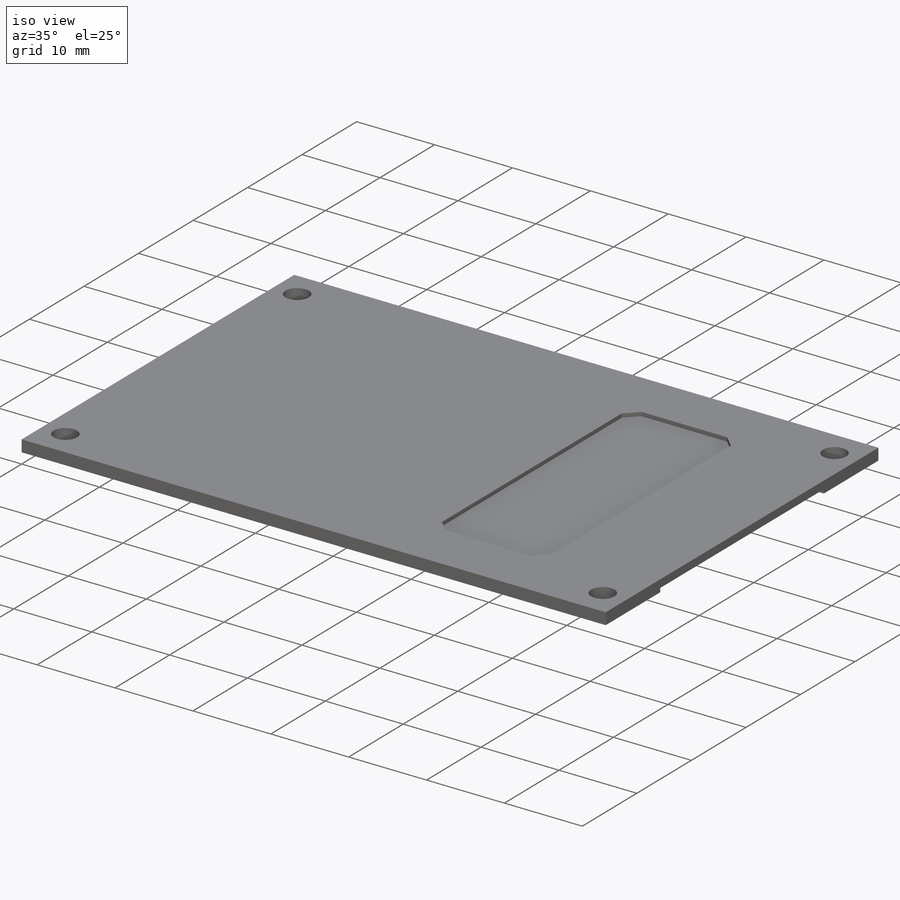
[diagram: iso view]
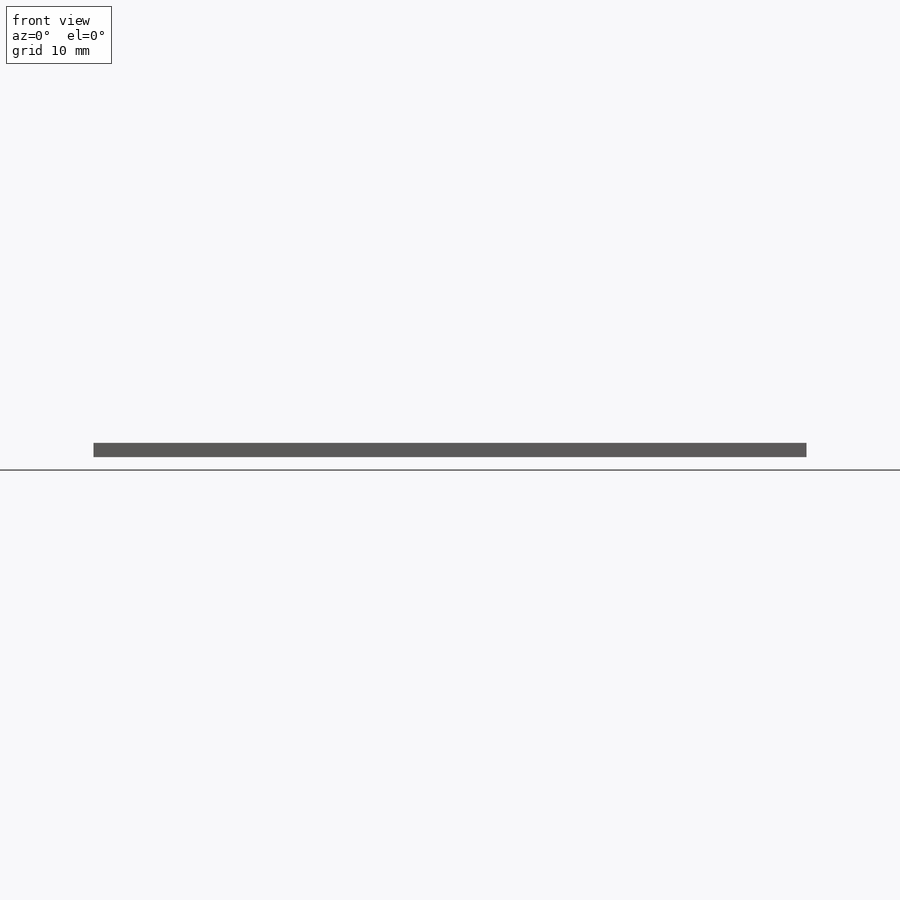
[diagram: front view]
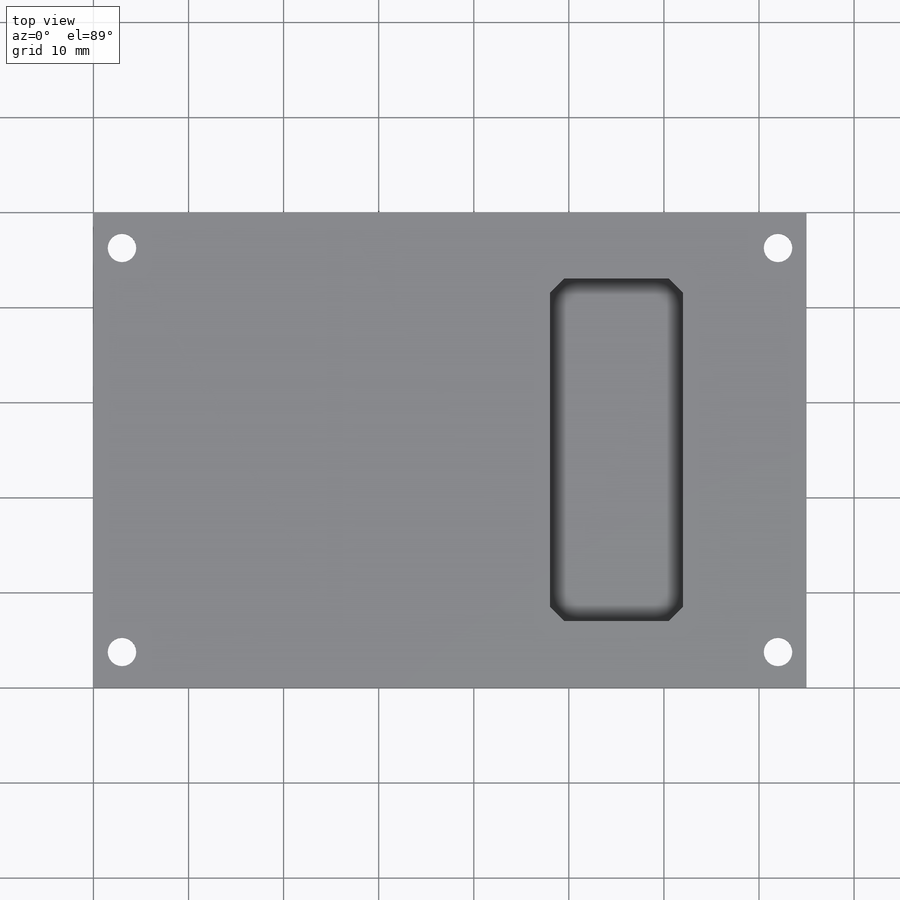
[diagram: top view]
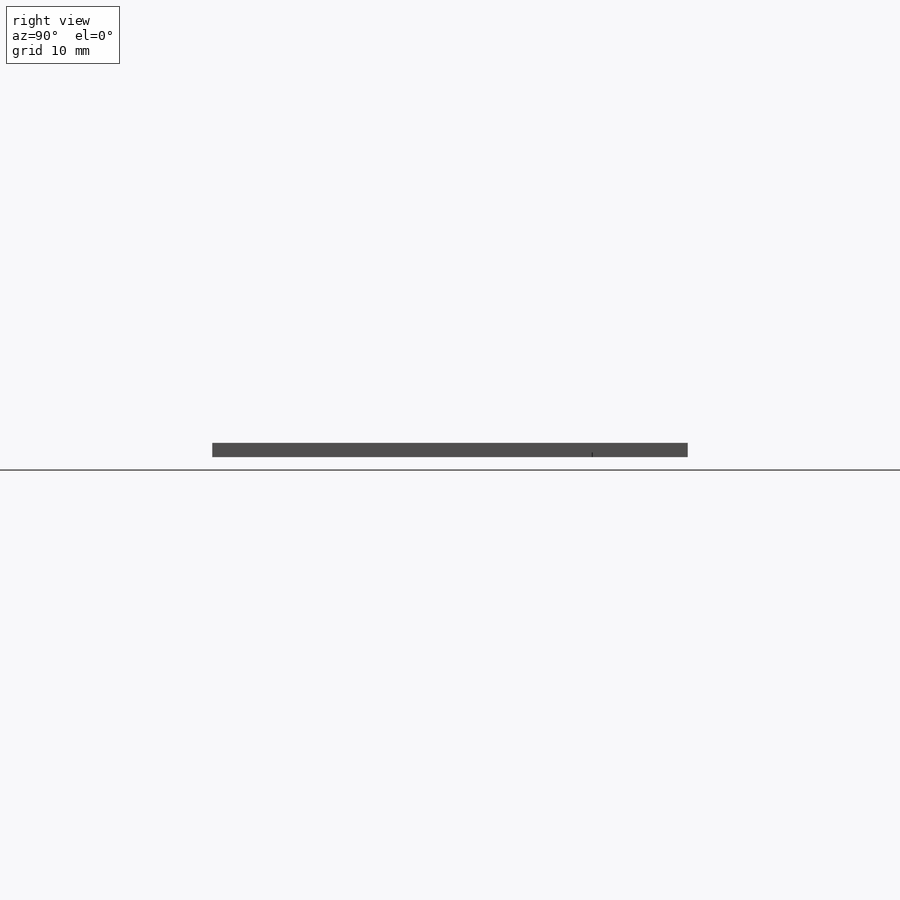
[diagram: right view]
SOLIDWORKS PART (.sldprt)
format: sldprt  version: not decoded by parser v0  size: 393,216 bytes
history: native  units: mm
features: sketch x4, plane x3, cut_extrude x3, material x1, extrude x1, chamfer x1 (+9 scaffold rows collapsed)
feature tree (22):
  scaffold x9  (default folders/planes/origin — collapsed)
  material  "Material <sin especificar>"
  plane  "Alzado"
  plane  "Planta"
  plane  "Vista lateral"
  sketch  "Croquis1"  dims[D5=3.0mm D1=75.0mm D2=50.0mm D3=69.0mm D4=42.5mm]
  extrude  "Saliente-Extruir1"  Depth=1.5mm
  sketch  "Croquis2"  dims[D5=6.2mm D6=10.0mm D1=5.5mm D2=12.0mm D3=3.5mm D4=37.0mm]
  cut_extrude  "Cortar-Extruir1"  Depth=0.5mm
  sketch  "Croquis3"  dims[D1=13.0mm D2=36.0mm D3=14.0mm]
  cut_extrude  "Cortar-Extruir2"  Depth=0.5mm
  chamfer  "Chaflán1"  Distance=1.5mm Angle=45deg
  sketch  "Croquis4"  dims[D1=30.0mm D2=10.0mm D3=10.0mm D4=30.0mm]
  cut_extrude  "Cortar-Extruir3"  Depth=0.5mm
decode coverage: 9 of 9 modeling features carry decoded parameters
note: suppression state not decoded; provenance and decode notes live in map.json
